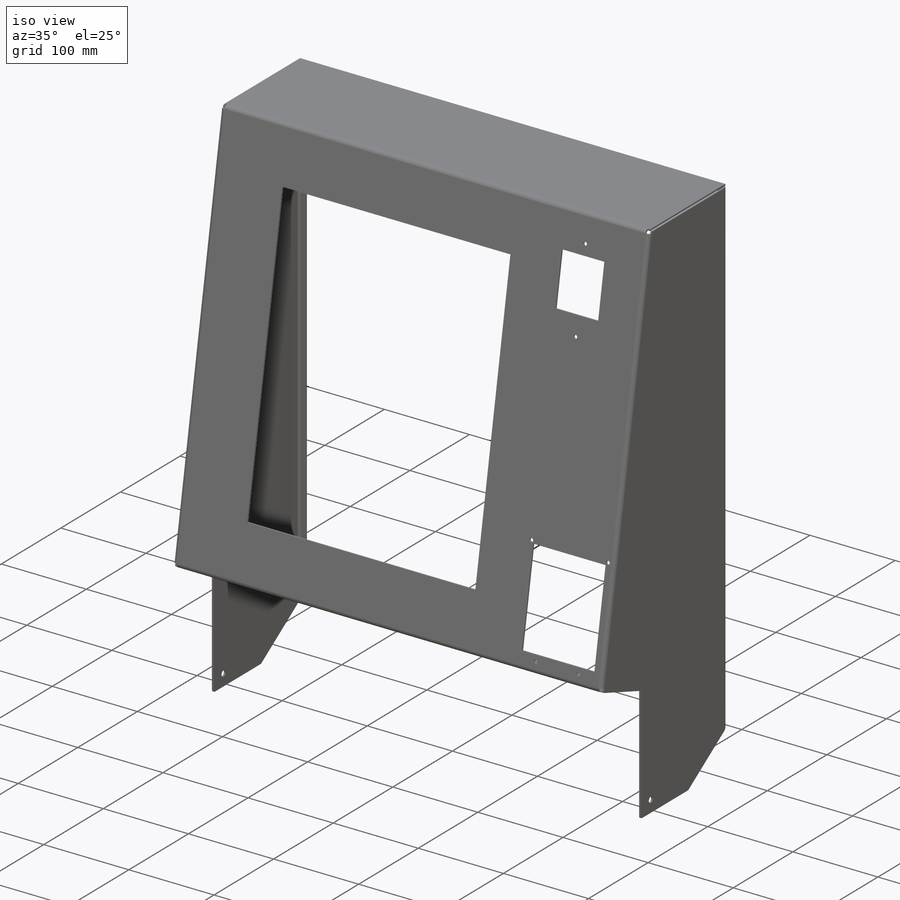
[diagram: iso view]
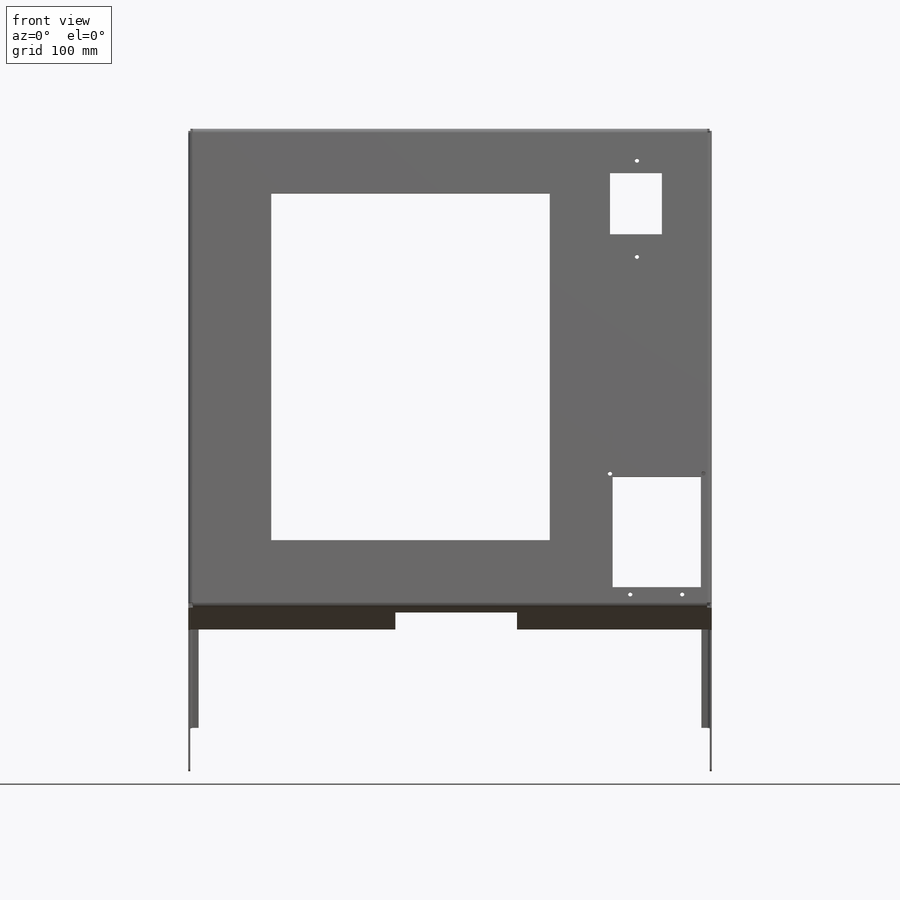
[diagram: front view]
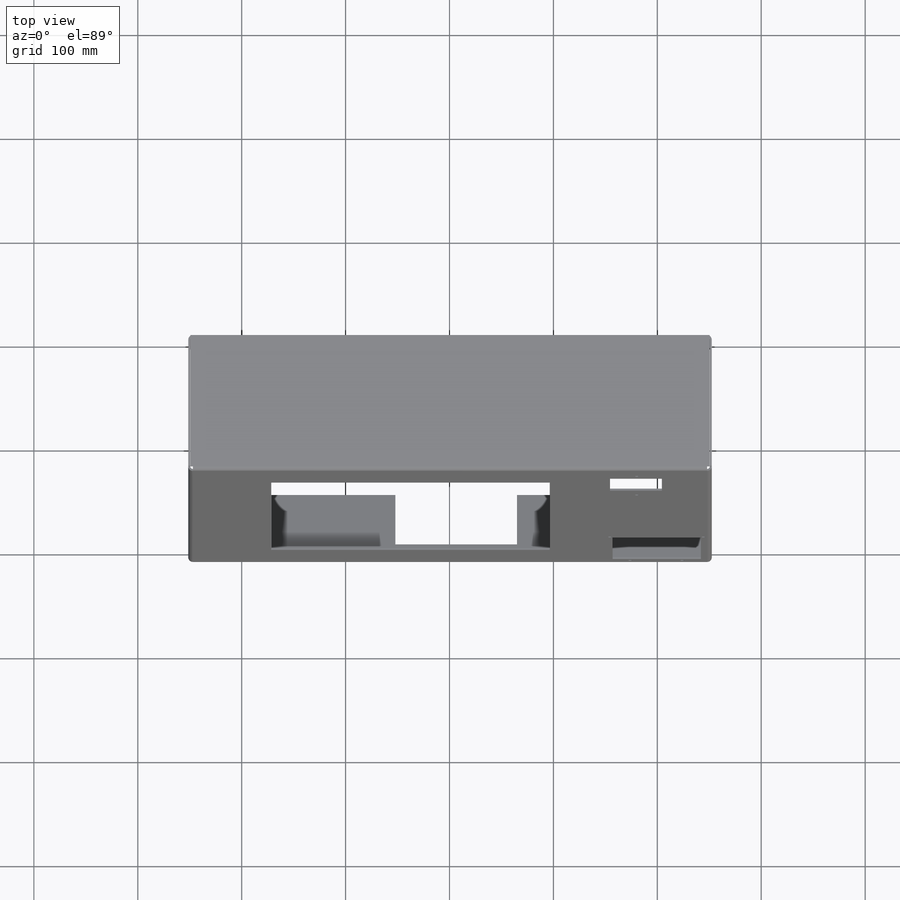
[diagram: top view]
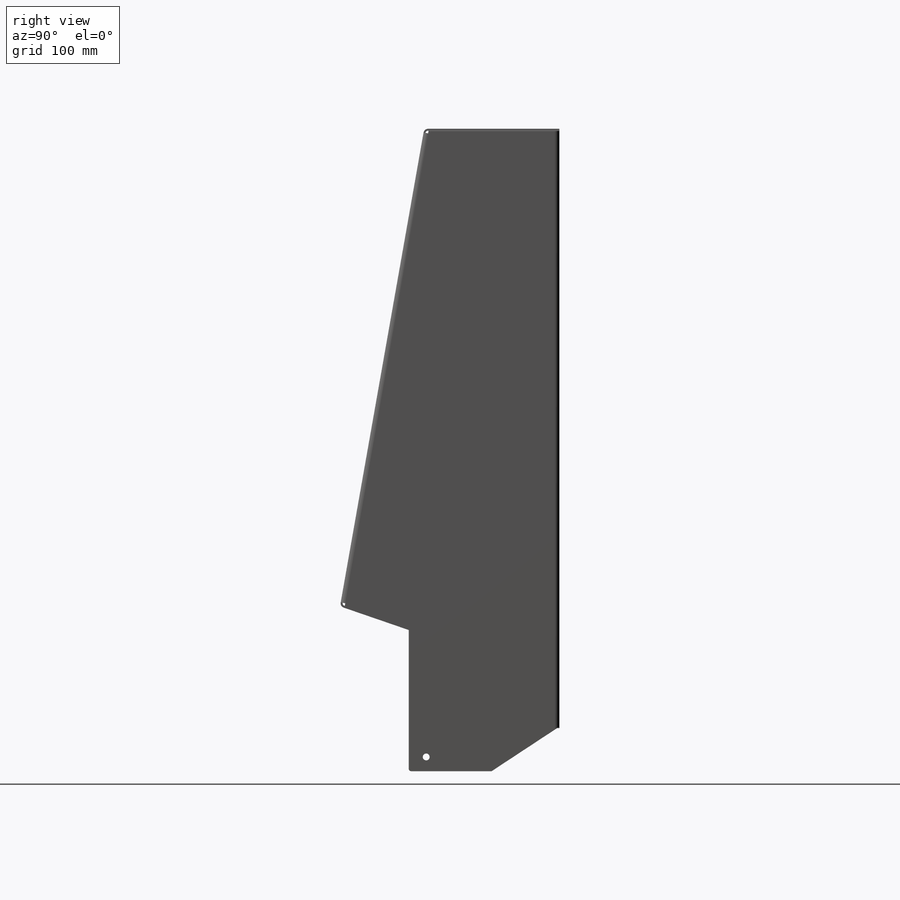
[diagram: right view]
SOLIDWORKS PART (.sldprt)
format: sldprt  version: not decoded by parser v0  size: 1,600,000 bytes
history: native  units: mm
features: sketch x65, sheet_metal_op x27, cut_extrude x12, plane x8, material x1 + 21 further entries (+12 scaffold rows collapsed; 20 parser-record rows omitted)
feature tree (166):
  scaffold x12  (default folders/planes/origin — collapsed)
  material  "Material <not specified>"
  "Annotations"  RD1=7mm
  plane  "Plane1"
  sketch  "Sketch1"  dims[D1=2.54mm D2=0.5 D3=0.0mm D6=500.0mm]
  sheet_metal_op  "Base-Flange2"
  sketch  "Sketch14"  dims[c1.D1=2.54mm c1.D4=90.0deg c1.D5=1.0 c1.D8=~0.94869mm c1.D9=~0.94869mm c2.D1=2.54mm c2.D2=500.0mm c2.D3=0.0mm c2.D6=10.0mm c2.D7=~239.254512mm c2.Edge-Flange2=0.0]
  sketch  "Sketch17"
  sheet_metal_op  "EdgeBend2"
  sketch  "Sketch21"  dims[D1=5.0mm]
  cut_extrude  "Cut-Extrude1"  [1 undecoded]
  sketch  "Sketch32"  dims[c1.D1=270.0mm c1.D2=340.92mm c1.D3=45.0mm c1.D4=40.0mm c1.D5=3.0mm c1.D6=35.0mm c1.D7=57.0mm c1.D8=35.0mm c2.D8=90.0deg c3.D8=35.0mm c4.D8=90.0deg c5.D8=70.0mm c5.D3=77.0mm c5.D4=60.5mm c5.D9=50.0mm c5.D10=60.0mm c5.D11=55.0mm c5.D12=28.5mm c6.D11=5.0mm c6.D13=1.0mm]
  cut_extrude  "Cut-Extrude3"  Depth=30mm
  sketch  "Sketch33"
  cut_extrude  "Cut-Extrude4"  Depth=0 Edge-Flange6=0
  sketch  "Sketch57"  dims[D1=67.0mm]
  sheet_metal_op  "EdgeBend11"
  sketch  "Sketch58"  dims[c1.D1=0.5mm c1.D2=0.5mm c1.D3=3.0mm c2.D1=0.0mm]
  cut_extrude  "Cut-Extrude5"  Depth=30mm
  plane  "Plane2"
  plane  "Plane3"
  plane  "Plane4"
  sketch  "Sketch91"  dims[D1=0.0mm]
  plane  "Plane6"
  plane  "Plane7"
  plane  "Plane8"
  sketch  "Sketch97"  dims[D1=8.22mm]
  plane  "Plane9"  Offset=2.54mm
  sketch  "Sketch176"  dims[D1=0.5mm]
  cut_extrude  "Cut-Extrude14"  [1 undecoded]
  sketch  "Sketch119"  dims[c1.D1=12.0mm c1.D2=12.0mm c1.D3=6.58mm c2.D1=~17.19592mm c2.D2=16.78mm]
  cut_extrude  "Cut-Extrude11"  Depth=0 Edge-Flange18=0
  sketch  "Sketch124"  dims[D1=~11.937185mm]
  sketch  "Sketch125"
  sheet_metal_op  "EdgeBend26"
  sheet_metal_op  "EdgeBend27"
  sketch  "Sketch144"  dims[D1=10.0mm]
  sketch  "Sketch193"  dims[D1=0.5mm]
  cut_extrude  "Cut-Extrude18"  [1 undecoded]
  sketch  "Sketch194"  dims[c1.D1=2000.0mm c2.D1=2000.0mm c2.Edge-Flange20=0.0]
  sketch  "Sketch209"
  sketch  "Sketch210"
  sheet_metal_op  "EdgeBend40"
  sheet_metal_op  "EdgeBend41"
  cut_extrude  "Cut-Extrude19"  Depth=2000mm
  sketch  "Sketch197"  dims[c1.D14=4.08mm c1.D15=4.08mm c1.D20=4.08mm c1.D21=4.08mm c1.D25=4.08mm c1.D26=4.08mm c1.D27=4.08mm c1.D28=4.08mm c1.D29=4.08mm c1.D30=4.08mm c1.D31=4.08mm c1.D32=4.08mm c1.D10=4.08mm c1.D33=4.08mm c1.D34=4.08mm c1.D35=4.08mm c1.D1=117.0mm c1.D2=85.0mm c1.D3=15.0mm c1.D4=60.0mm c1.D5=55.0mm c1.D6=75.0mm c1.D7=60.0mm c1.D8=50.0mm c1.D9=~271.468973mm c2.D10=0.0mm c2.D9=117.0mm c2.D11=137.0mm c2.D12=5.0mm c2.D13=153.16mm c3.D11=108.0mm c3.D15=50.0mm c3.D16=117.0mm c3.D17=6.0mm c3.D18=6.0mm c3.D19=70.0mm c4.D16=90.0mm c4.D17=2.5mm c4.D18=2.5mm c4.D19=3.0mm c4.D20=~0.594959mm c5.D18=3.0mm c5.D22=50.0mm c5.D23=17.0mm c5.D24=7.0mm c5.D10=~13.10262mm c5.D33=~13.10262mm c5.D34=35.0mm c5.D35=65.0mm c5.D36=~185.551697mm c5.D37=138.16mm c5.D12=10.0mm c6.D37=5.1mm c6.D3=7.0mm c6.D4=15.0mm c6.D5=6.0mm]
  cut_extrude  "Cut-Extrude22"  Depth=10mm
  sketch  "Sketch199"  dims[D3=4.08mm D1=7.0mm D2=7.0mm D4=29.0mm D5=29.0mm]
  cut_extrude  "Cut-Extrude24"  Depth=10mm
  sketch  "Sketch201"  dims[D1=4.08mm D2=50.0mm]
  cut_extrude  "Cut-Extrude26"  Depth=10mm
  sketch  "Sketch211"
  cut_extrude  "Cut-Extrude27"  [1 undecoded]
  sketch  "Bend-Lines3"
  sketch  "Bounding-Box3"
  sheet_metal_op  "Sheet-Metal2"
  "Flat-Pattern2"
  sketch  "Bend-Lines4"
  sketch  "Bounding-Box4"
  parser-record x20  (decoder bookkeeping rows leaked as tree rows — omitted from the tree; the rows remain in map.json)
  sheet_metal_op  "Sheet-Metal3"
  "Flat-Pattern2"
  sketch  "Bend-Lines4"
  sketch  "Bounding-Box4"
  sheet_metal_op  "Sheet-Metal4"
  "Flat-Pattern2"
  sketch  "Bend-Lines4"
  sketch  "Bounding-Box4"
  sheet_metal_op  "Sheet-Metal5"
  "Flat-Pattern2"
  sketch  "Bend-Lines4"
  sketch  "Bounding-Box4"
  sheet_metal_op  "Sheet-Metal10"
  "Flat-Pattern2"
  sketch  "Bend-Lines4"
  sketch  "Bounding-Box4"
  sheet_metal_op  "Sheet-Metal11"
  "Flat-Pattern2"
  sketch  "Bend-Lines4"
  sketch  "Bounding-Box4"
  sheet_metal_op  "Sheet-Metal14"
  "Flat-Pattern2"
  sketch  "Bend-Lines4"
  sketch  "Bounding-Box4"
  sheet_metal_op  "Sheet-Metal15"
  "Flat-Pattern2"
  sketch  "Bend-Lines4"
  sketch  "Bounding-Box4"
  sheet_metal_op  "Sheet-Metal28"
  "Flat-Pattern2"
  sketch  "Bend-Lines4"
  sketch  "Bounding-Box4"
  sheet_metal_op  "Sheet-Metal29"
  "Flat-Pattern2"
  sketch  "Bend-Lines4"
  sketch  "Bounding-Box4"
  sheet_metal_op  "Sheet-Metal30"
  "Flat-Pattern2"
  sketch  "Bend-Lines5"
  sketch  "Bounding-Box5"
  sheet_metal_op  "Sheet-Metal36"
  "Flat-Pattern2"
  sketch  "Bend-Lines4"
  sketch  "Bounding-Box4"
  sheet_metal_op  "Sheet-Metal39"
  "Flat-Pattern2"
  sketch  "Bend-Lines4"
  sketch  "Bounding-Box4"
  sheet_metal_op  "Sheet-Metal40"
  "Flat-Pattern2"
  sketch  "Bend-Lines4"
  sketch  "Bounding-Box4"
  sheet_metal_op  "Sheet-Metal41"
  "Flat-Pattern2"
  sketch  "Bend-Lines4"
  sketch  "Bounding-Box4"
  sheet_metal_op  "Sheet-Metal44"
  "Flat-Pattern2"
  sketch  "Bend-Lines4"
  sketch  "Bounding-Box4"
  sheet_metal_op  "Sheet-Metal46"
  "Flat-Pattern2"
  sketch  "Bend-Lines4"
  sketch  "Bounding-Box4"
  sheet_metal_op  "Sheet-Metal48"
  "Flat-Pattern2"
  sketch  "Bend-Lines4"
  sketch  "Bounding-Box4"
  sheet_metal_op  "Sheet-Metal50"
  "Flat-Pattern2"
  sketch  "Bend-Lines4"
  sketch  "Bounding-Box4"
  sheet_metal_op  "Sheet-Metal51"
  "Flat-Pattern2"
  sketch  "Bend-Lines4"
  sketch  "Bounding-Box4"
decode coverage: 25 of 104 modeling features carry decoded parameters; 21 rows unclassified (native names shown)
note: ~ marks probable driven/reference dimensions
note: 4 parameter values undecoded
summary: no parameter record found for 4 features
note: suppression state not decoded; provenance and decode notes live in map.json
